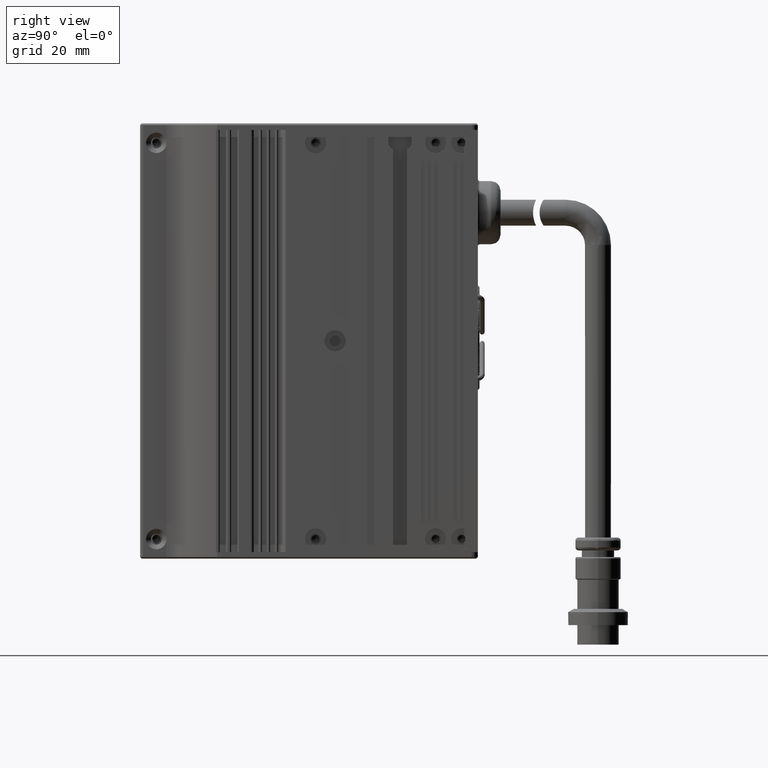
[diagram: clean part render]
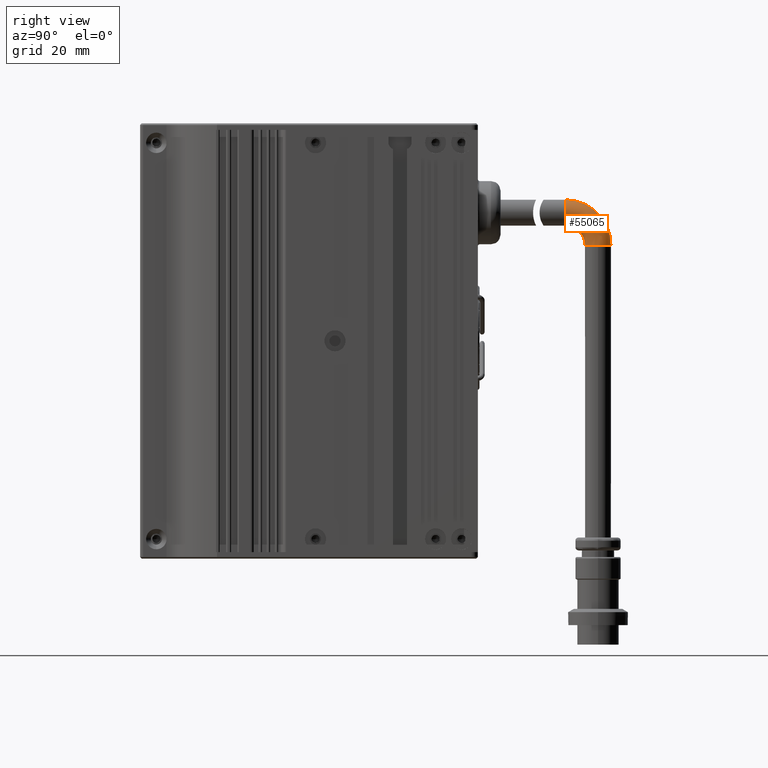
[diagram: same view with one face highlighted and labeled with its STEP entity id]
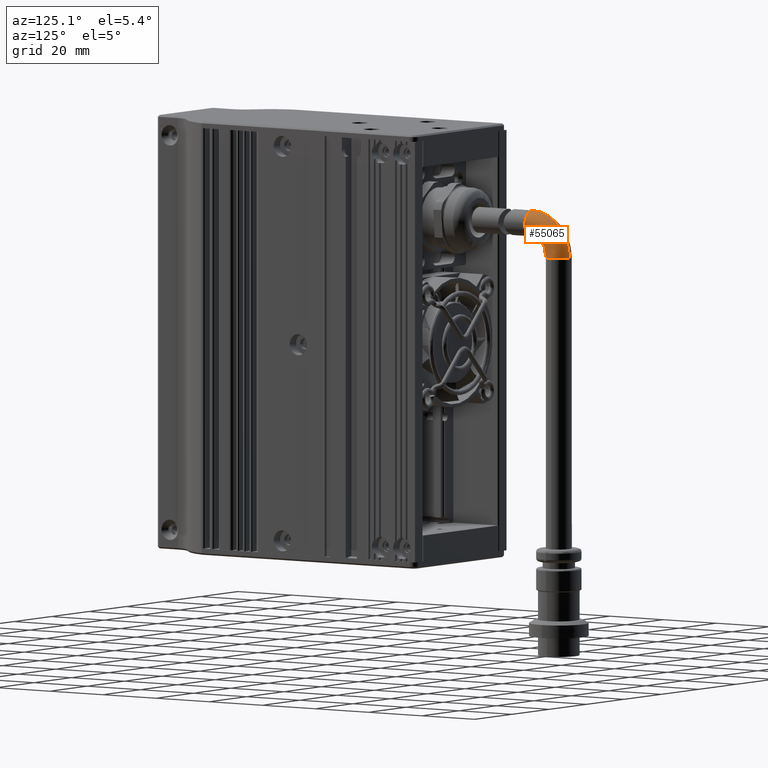
[diagram: same view with one face highlighted and labeled with its STEP entity id]
A machine part, right view. The second image highlights one B-rep face of the part: STEP entity #55065.
A second angle (auxiliary view) of the same face is appended — the face is thin or edge-on in the first view.
In plain terms, the highlighted face is a freeform B-spline surface patch.
Its self-contained STEP definition (entity closure, byte-faithful):
#1354 = AXIS2_PLACEMENT_3D ( 'NONE', #67067, #28217, #4899 ) ;
#1505 = VERTEX_POINT ( 'NONE', #11858 ) ;
#2241 = VERTEX_POINT ( 'NONE', #65441 ) ;
#2330 = FACE_OUTER_BOUND ( 'NONE', #20204, .T. ) ;
#2363 = CARTESIAN_POINT ( 'NONE',  ( -37.41201180637546700, 71.00452420306967800, 35.49999999999996400 ) ) ;
#4899 = DIRECTION ( 'NONE',  ( 0.0000000000000000000, 0.0000000000000000000, 1.000000000000000000 ) ) ;
#5255 = DIRECTION ( 'NONE',  ( -1.118827870677733900E-016, 5.385191463057589400E-016, -1.000000000000000000 ) ) ;
#6784 = AXIS2_PLACEMENT_3D ( 'NONE', #38104, #32527, #21058 ) ;
#7220 = CARTESIAN_POINT ( 'NONE',  ( -29.41201180637547500, 71.00452420306967800, 43.49999999999997200 ) ) ;
#8160 = CARTESIAN_POINT ( 'NONE',  ( -29.41201180637547500, 77.00452420306969300, 29.49999999999951000 ) ) ;
#8769 = EDGE_CURVE ( 'NONE', #36626, #11863, #22720, .T. ) ;
#11858 = CARTESIAN_POINT ( 'NONE',  ( -37.41201180637546700, 77.00452420306965000, 29.49999999999952400 ) ) ;
#11863 = VERTEX_POINT ( 'NONE', #39183 ) ;
#12643 = DIRECTION ( 'NONE',  ( 0.0000000000000000000, 0.0000000000000000000, 1.000000000000000000 ) ) ;
#16706 = EDGE_CURVE ( 'NONE', #2241, #36626, #49475, .T. ) ;
#17510 = ORIENTED_EDGE ( 'NONE', *, *, #57458, .F. ) ;
#18370 = CARTESIAN_POINT ( 'NONE',  ( -29.41201180637548200, 85.00452420307028900, 37.70101012677608300 ) ) ;
#19020 = ORIENTED_EDGE ( 'NONE', *, *, #53204, .T. ) ;
#19370 =( BOUNDED_SURFACE ( )  B_SPLINE_SURFACE ( 3, 3, ( 
 ( #23707, #29570, #68230, #34939 ),
 ( #7220, #46048, #18370, #57257 ),
 ( #46766, #52593, #64291, #8160 ),
 ( #2363, #30305, #52353, #69887 ) ),
 .UNSPECIFIED., .F., .F., .F. ) 
 B_SPLINE_SURFACE_WITH_KNOTS ( ( 4, 4 ),
 ( 4, 4 ),
 ( 0.0000000000000000000, 1.000000000000000000 ),
 ( 0.0000000000000000000, 1.000000000000000000 ),
 .UNSPECIFIED. ) 
 GEOMETRIC_REPRESENTATION_ITEM ( )  RATIONAL_B_SPLINE_SURFACE ( (
 ( 1.000000000000000000, 0.8047378541243476200, 0.8047378541243476200, 1.000000000000000000),
 ( 0.3333333333333335400, 0.2682459513747826900, 0.2682459513747826900, 0.3333333333333335400),
 ( 0.3333333333333335400, 0.2682459513747826900, 0.2682459513747826900, 0.3333333333333335400),
 ( 1.000000000000000000, 0.8047378541243476200, 0.8047378541243476200, 1.000000000000000000) ) ) 
 REPRESENTATION_ITEM ( '' )  SURFACE ( )  );
#20204 = EDGE_LOOP ( 'NONE', ( #31075, #19020, #17510, #61941, #56678 ) ) ;
#20897 = AXIS2_PLACEMENT_3D ( 'NONE', #22453, #5255, #32971 ) ;
#21058 = DIRECTION ( 'NONE',  ( -1.000000000000000000, 0.0000000000000000000, 0.0000000000000000000 ) ) ;
#22453 = CARTESIAN_POINT ( 'NONE',  ( -37.41201180637541100, 81.00452420306965000, 29.49999999999952700 ) ) ;
#22720 = CIRCLE ( 'NONE', #6784, 4.000000000000010700 ) ;
#23707 = CARTESIAN_POINT ( 'NONE',  ( -37.41201180637546700, 71.00452420306967800, 43.49999999999997200 ) ) ;
#28217 = DIRECTION ( 'NONE',  ( -1.000000000000000000, -5.048761219114947200E-016, -2.263745364822419200E-016 ) ) ;
#29570 = CARTESIAN_POINT ( 'NONE',  ( -37.41201180637547500, 79.20553432984687000, 43.49999999999997200 ) ) ;
#30305 = CARTESIAN_POINT ( 'NONE',  ( -37.41201180637546700, 74.51924282883132400, 35.49999999999996400 ) ) ;
#31075 = ORIENTED_EDGE ( 'NONE', *, *, #33581, .T. ) ;
#31748 = CARTESIAN_POINT ( 'NONE',  ( -37.41201180637540300, 71.00452420306967800, 35.49999999999996400 ) ) ;
#32444 = CIRCLE ( 'NONE', #20897, 4.000000000000010700 ) ;
#32527 = DIRECTION ( 'NONE',  ( -1.118827870677733900E-016, 5.385191463057589400E-016, -1.000000000000000000 ) ) ;
#32971 = DIRECTION ( 'NONE',  ( -1.000000000000000000, 0.0000000000000000000, 0.0000000000000000000 ) ) ;
#33581 = EDGE_CURVE ( 'NONE', #2241, #37450, #71554, .T. ) ;
#34939 = CARTESIAN_POINT ( 'NONE',  ( -37.41201180637547500, 85.00452420306969300, 29.49999999999893100 ) ) ;
#36626 = VERTEX_POINT ( 'NONE', #67058 ) ;
#37450 = VERTEX_POINT ( 'NONE', #31748 ) ;
#38104 = CARTESIAN_POINT ( 'NONE',  ( -37.41201180637541100, 81.00452420306965000, 29.49999999999952700 ) ) ;
#39183 = CARTESIAN_POINT ( 'NONE',  ( -33.41201180637540300, 81.00452420306966400, 29.49999999999952700 ) ) ;
#43522 = AXIS2_PLACEMENT_3D ( 'NONE', #45892, #64158, #12643 ) ;
#45892 = CARTESIAN_POINT ( 'NONE',  ( -37.41201180637546700, 71.00452420306967800, 39.49999999999996400 ) ) ;
#46048 = CARTESIAN_POINT ( 'NONE',  ( -29.41201180637548200, 79.20553432984681300, 43.49999999999996400 ) ) ;
#46766 = CARTESIAN_POINT ( 'NONE',  ( -29.41201180637547500, 71.00452420306967800, 35.49999999999995700 ) ) ;
#49475 = CIRCLE ( 'NONE', #1354, 14.00000000000000500 ) ;
#52353 = CARTESIAN_POINT ( 'NONE',  ( -37.41201180637546700, 77.00452420306996300, 33.01471862576114800 ) ) ;
#52593 = CARTESIAN_POINT ( 'NONE',  ( -29.41201180637548200, 74.51924282883132400, 35.49999999999995700 ) ) ;
#53204 = EDGE_CURVE ( 'NONE', #37450, #1505, #64218, .T. ) ;
#54399 = DIRECTION ( 'NONE',  ( 0.0000000000000000000, 0.0000000000000000000, 1.000000000000000000 ) ) ;
#55065 = ADVANCED_FACE ( 'NONE', ( #2330 ), #19370, .T. ) ;
#56678 = ORIENTED_EDGE ( 'NONE', *, *, #16706, .F. ) ;
#57257 = CARTESIAN_POINT ( 'NONE',  ( -29.41201180637547500, 85.00452420306969300, 29.49999999999892700 ) ) ;
#57458 = EDGE_CURVE ( 'NONE', #11863, #1505, #32444, .T. ) ;
#59306 = CARTESIAN_POINT ( 'NONE',  ( -37.41201180637546700, 71.00452420306967800, 29.49999999999996400 ) ) ;
#59780 = DIRECTION ( 'NONE',  ( -1.000000000000000000, -5.048761219114947200E-016, -2.263745364822419200E-016 ) ) ;
#61941 = ORIENTED_EDGE ( 'NONE', *, *, #8769, .F. ) ;
#63835 = AXIS2_PLACEMENT_3D ( 'NONE', #59306, #59780, #54399 ) ;
#64158 = DIRECTION ( 'NONE',  ( -5.048761219114948200E-016, 1.000000000000000000, 5.107635706901290400E-016 ) ) ;
#64218 = CIRCLE ( 'NONE', #63835, 5.999999999999998200 ) ;
#64291 = CARTESIAN_POINT ( 'NONE',  ( -29.41201180637547500, 77.00452420306994800, 33.01471862576114100 ) ) ;
#65441 = CARTESIAN_POINT ( 'NONE',  ( -37.41201180637546700, 71.00452420306967800, 43.49999999999997200 ) ) ;
#67058 = CARTESIAN_POINT ( 'NONE',  ( -37.41201180637547500, 85.00452420306966400, 29.49999999999952700 ) ) ;
#67067 = CARTESIAN_POINT ( 'NONE',  ( -37.41201180637546700, 71.00452420306967800, 29.49999999999996400 ) ) ;
#68230 = CARTESIAN_POINT ( 'NONE',  ( -37.41201180637547500, 85.00452420307030400, 37.70101012677608300 ) ) ;
#69887 = CARTESIAN_POINT ( 'NONE',  ( -37.41201180637546700, 77.00452420306969300, 29.49999999999951300 ) ) ;
#71554 = CIRCLE ( 'NONE', #43522, 4.000000000000003600 ) ;